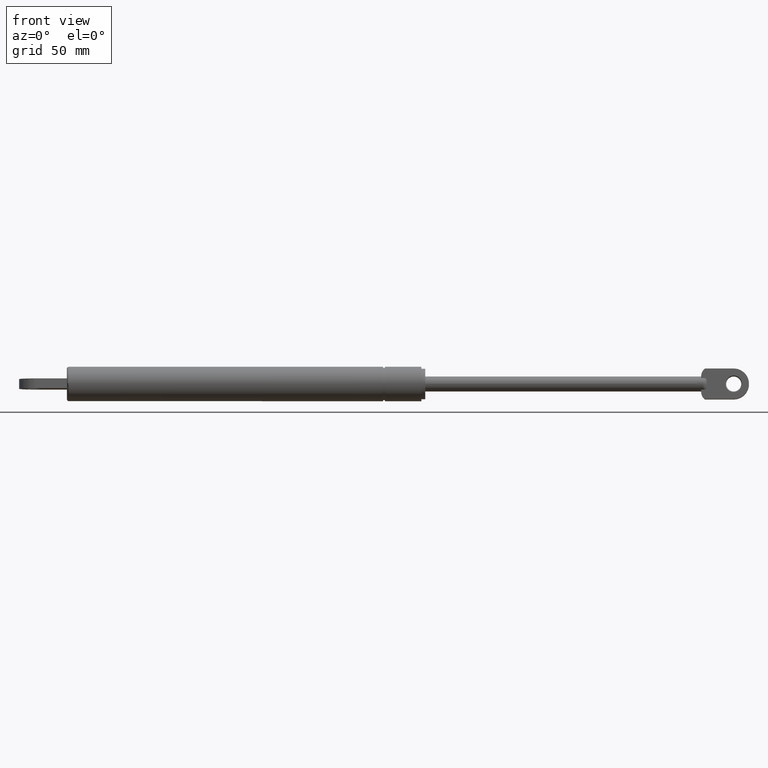
[diagram: clean part render]
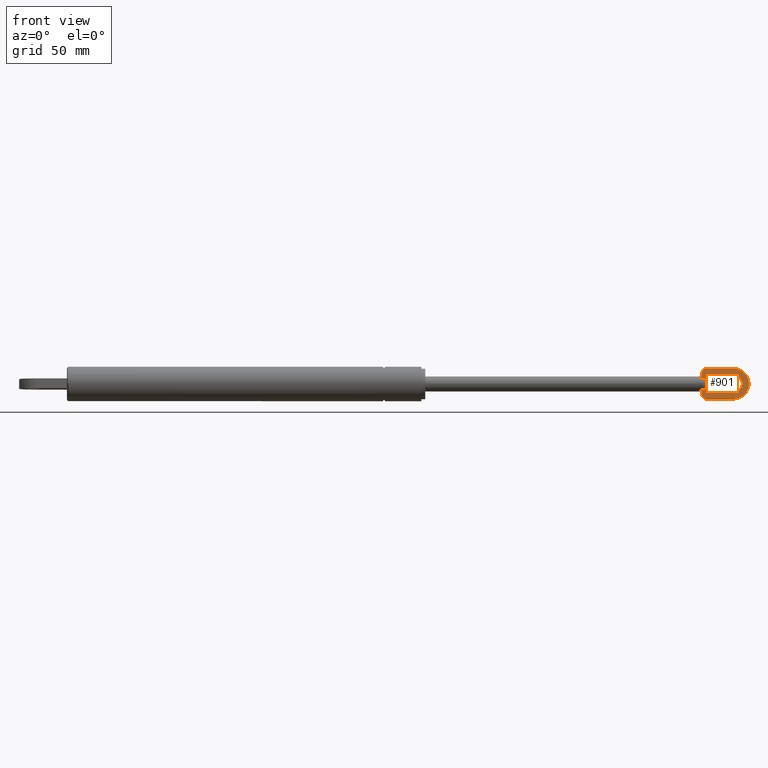
[diagram: same view with one face highlighted and labeled with its STEP entity id]
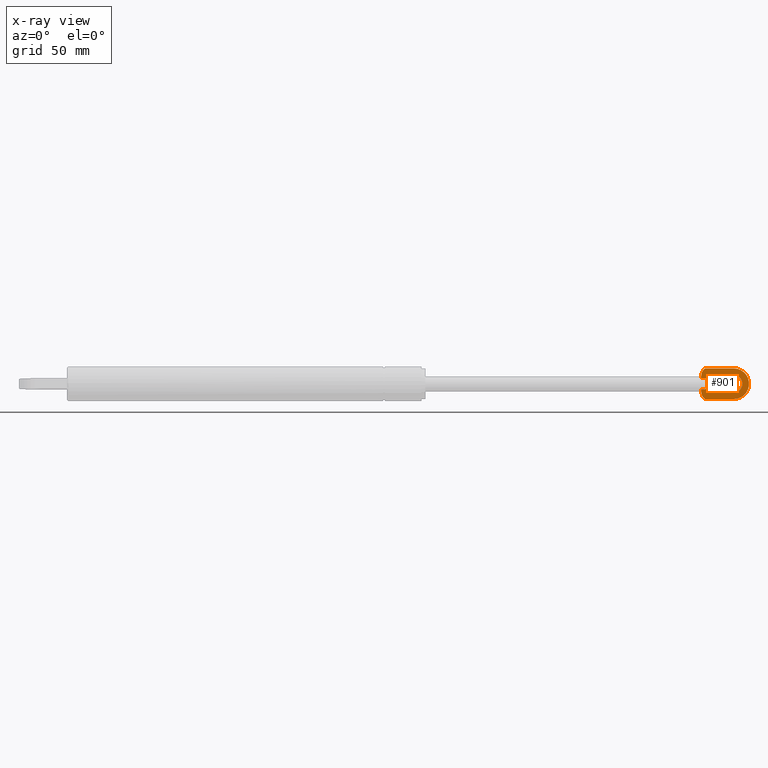
[diagram: x-ray of the same camera — body ghosted, the highlighted face saturated]
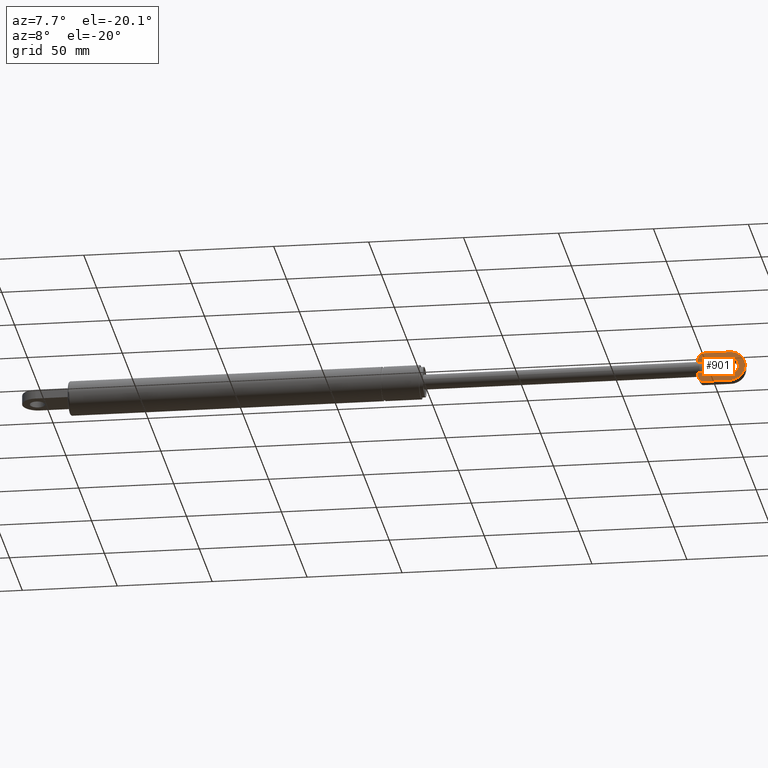
[diagram: same view with one face highlighted and labeled with its STEP entity id]
A machine part, front view. The second image highlights one B-rep face of the part: STEP entity #901.
The next image is the same camera in x-ray: the body ghosted, the highlighted face saturated — about 0% of this face is hidden behind the body in this view.
A second angle (auxiliary view) of the same face is appended — the face is thin or edge-on in the first view.
In plain terms, the highlighted planar face has unit normal (0, -0.9986, 0.0527).
Its self-contained STEP definition (entity closure, byte-faithful):
#84=LINE('',#1462,#120);
#85=LINE('',#1466,#121);
#91=LINE('',#1520,#127);
#93=LINE('',#1524,#129);
#94=LINE('',#1527,#130);
#95=LINE('',#1538,#131);
#107=LINE('',#1637,#143);
#108=LINE('',#1657,#144);
#109=LINE('',#1660,#145);
#120=VECTOR('',#1171,0.00130278208835932);
#121=VECTOR('',#1174,0.00130278208835932);
#127=VECTOR('',#1212,0.905371308492486);
#129=VECTOR('',#1216,0.905371308492487);
#130=VECTOR('',#1219,1.46496107074545);
#131=VECTOR('',#1220,1.46496107191372);
#143=VECTOR('',#1264,3.66606055596467);
#144=VECTOR('',#1265,14.634929514543);
#145=VECTOR('',#1268,14.634929514543);
#170=PLANE('',#1015);
#205=FACE_BOUND('',#363,.T.);
#226=B_SPLINE_CURVE_WITH_KNOTS('',3,(#1618,#1619,#1620,#1621,#1622,#1623,
#1624,#1625,#1626,#1627,#1628,#1629,#1630,#1631,#1632,#1633,#1634,#1635),
 .UNSPECIFIED.,.F.,.F.,(4,2,2,2,2,2,2,2,4),(0.,0.0690912354984613,0.131390143104628,
0.178106795887077,0.203221808805649,0.215204726390715,0.219497162319352,
0.221089283033011,0.221248680863122),.UNSPECIFIED.);
#227=B_SPLINE_CURVE_WITH_KNOTS('',3,(#1638,#1639,#1640,#1641,#1642,#1643,
#1644,#1645,#1646,#1647,#1648,#1649,#1650,#1651,#1652,#1653,#1654,#1655),
 .UNSPECIFIED.,.F.,.F.,(4,2,2,2,2,2,2,2,4),(-1.81460472844698E-5,0.,0.000322360023974993,
0.00121367107376994,0.00369803312218985,0.00890722924048458,0.0185988161350794,
0.0315182124548747,0.0458473792328224),.UNSPECIFIED.);
#274=FACE_OUTER_BOUND('',#362,.T.);
#362=EDGE_LOOP('',(#794,#795,#796,#797,#798,#799,#800,#801,#802,#803,#804,
#805,#806,#807,#808,#809));
#363=EDGE_LOOP('',(#810));
#420=CIRCLE('',#995,5.2025);
#423=CIRCLE('',#1003,1.);
#429=CIRCLE('',#1011,1.);
#430=CIRCLE('',#1013,5.2025);
#431=CIRCLE('',#1016,8.);
#432=CIRCLE('',#1017,4.5);
#475=VERTEX_POINT('',#1460);
#476=VERTEX_POINT('',#1461);
#477=VERTEX_POINT('',#1463);
#478=VERTEX_POINT('',#1465);
#491=VERTEX_POINT('',#1510);
#492=VERTEX_POINT('',#1512);
#495=VERTEX_POINT('',#1522);
#496=VERTEX_POINT('',#1526);
#497=VERTEX_POINT('',#1528);
#499=VERTEX_POINT('',#1543);
#511=VERTEX_POINT('',#1607);
#512=VERTEX_POINT('',#1609);
#513=VERTEX_POINT('',#1617);
#514=VERTEX_POINT('',#1636);
#515=VERTEX_POINT('',#1656);
#516=VERTEX_POINT('',#1658);
#517=VERTEX_POINT('',#1661);
#566=EDGE_CURVE('',#475,#476,#84,.T.);
#568=EDGE_CURVE('',#478,#477,#85,.T.);
#585=EDGE_CURVE('',#492,#491,#420,.T.);
#589=EDGE_CURVE('',#491,#475,#91,.T.);
#591=EDGE_CURVE('',#477,#495,#93,.T.);
#592=EDGE_CURVE('',#496,#478,#94,.T.);
#594=EDGE_CURVE('',#476,#497,#95,.T.);
#596=EDGE_CURVE('',#492,#499,#423,.T.);
#613=EDGE_CURVE('',#511,#512,#429,.T.);
#616=EDGE_CURVE('',#495,#512,#430,.T.);
#617=EDGE_CURVE('',#513,#497,#226,.F.);
#618=EDGE_CURVE('',#513,#514,#107,.T.);
#619=EDGE_CURVE('',#514,#496,#227,.T.);
#620=EDGE_CURVE('',#511,#515,#108,.T.);
#621=EDGE_CURVE('',#515,#516,#431,.T.);
#622=EDGE_CURVE('',#516,#499,#109,.T.);
#623=EDGE_CURVE('',#517,#517,#432,.T.);
#794=ORIENTED_EDGE('',*,*,#596,.F.);
#795=ORIENTED_EDGE('',*,*,#585,.T.);
#796=ORIENTED_EDGE('',*,*,#589,.T.);
#797=ORIENTED_EDGE('',*,*,#566,.T.);
#798=ORIENTED_EDGE('',*,*,#594,.T.);
#799=ORIENTED_EDGE('',*,*,#617,.F.);
#800=ORIENTED_EDGE('',*,*,#618,.T.);
#801=ORIENTED_EDGE('',*,*,#619,.T.);
#802=ORIENTED_EDGE('',*,*,#592,.T.);
#803=ORIENTED_EDGE('',*,*,#568,.T.);
#804=ORIENTED_EDGE('',*,*,#591,.T.);
#805=ORIENTED_EDGE('',*,*,#616,.T.);
#806=ORIENTED_EDGE('',*,*,#613,.F.);
#807=ORIENTED_EDGE('',*,*,#620,.T.);
#808=ORIENTED_EDGE('',*,*,#621,.T.);
#809=ORIENTED_EDGE('',*,*,#622,.T.);
#810=ORIENTED_EDGE('',*,*,#623,.F.);
#901=ADVANCED_FACE('',(#274,#205),#170,.T.);
#995=AXIS2_PLACEMENT_3D('',#1513,#1204,#1205);
#1003=AXIS2_PLACEMENT_3D('',#1544,#1227,#1228);
#1011=AXIS2_PLACEMENT_3D('',#1610,#1252,#1253);
#1013=AXIS2_PLACEMENT_3D('',#1614,#1258,#1259);
#1015=AXIS2_PLACEMENT_3D('',#1616,#1262,#1263);
#1016=AXIS2_PLACEMENT_3D('',#1659,#1266,#1267);
#1017=AXIS2_PLACEMENT_3D('',#1662,#1269,#1270);
#1171=DIRECTION('',(1.83697019872103E-16,-1.,0.));
#1174=DIRECTION('',(1.83697019872103E-16,-1.,0.));
#1204=DIRECTION('center_axis',(0.,0.,1.));
#1205=DIRECTION('ref_axis',(1.,-1.06700915389251E-16,0.));
#1212=DIRECTION('',(1.83697019872103E-16,-1.,0.));
#1216=DIRECTION('',(1.83697019872103E-16,-1.,0.));
#1219=DIRECTION('',(-1.,0.,0.));
#1220=DIRECTION('',(1.,0.,0.));
#1227=DIRECTION('center_axis',(0.,0.,-1.));
#1228=DIRECTION('ref_axis',(-0.362176644022377,0.93210947775714,0.));
#1252=DIRECTION('center_axis',(0.,0.,-1.));
#1253=DIRECTION('ref_axis',(-0.362176644022378,-0.93210947775714,0.));
#1258=DIRECTION('center_axis',(0.,0.,1.));
#1259=DIRECTION('ref_axis',(1.,1.06700915389251E-16,0.));
#1262=DIRECTION('center_axis',(0.,0.,1.));
#1263=DIRECTION('ref_axis',(1.,0.,0.));
#1264=DIRECTION('',(-7.57226012684414E-34,-1.,0.));
#1265=DIRECTION('',(1.,6.53072367426563E-17,0.));
#1266=DIRECTION('center_axis',(0.,0.,1.));
#1267=DIRECTION('ref_axis',(0.,1.,0.));
#1268=DIRECTION('',(-1.,-3.26536183713281E-16,0.));
#1269=DIRECTION('center_axis',(0.,0.,1.));
#1270=DIRECTION('ref_axis',(-1.,0.,0.));
#1460=CARTESIAN_POINT('',(-1.94289029309402E-15,2.99462869150751,2.5));
#1461=CARTESIAN_POINT('',(0.,2.99332590941915,2.5));
#1462=CARTESIAN_POINT('',(3.11895409416677E-16,-8.,2.5));
#1463=CARTESIAN_POINT('',(0.,-2.99462869150751,2.5));
#1465=CARTESIAN_POINT('',(0.,-2.99332590941915,2.5));
#1466=CARTESIAN_POINT('',(3.11895409416677E-16,-8.,2.5));
#1510=CARTESIAN_POINT('',(0.,3.9,2.5));
#1512=CARTESIAN_POINT('',(1.68989392042589,7.73765615704938,2.5));
#1513=CARTESIAN_POINT('Origin',(5.2025,3.9,2.5));
#1520=CARTESIAN_POINT('',(3.11895409416677E-16,-8.,2.5));
#1522=CARTESIAN_POINT('',(0.,-3.9,2.5));
#1524=CARTESIAN_POINT('',(3.11895409416677E-16,-8.,2.5));
#1526=CARTESIAN_POINT('',(1.46496107074545,-2.9933259080364,2.50000000165561));
#1527=CARTESIAN_POINT('',(0.,-2.99332590941915,2.5));
#1528=CARTESIAN_POINT('',(1.46496107191372,2.99332590923542,2.50000000021999));
#1538=CARTESIAN_POINT('',(0.,2.99332590941915,2.5));
#1543=CARTESIAN_POINT('',(2.36507048545695,8.,2.5));
#1544=CARTESIAN_POINT('Origin',(2.36507048545695,7.,2.5));
#1607=CARTESIAN_POINT('',(2.36507048545695,-8.,2.5));
#1609=CARTESIAN_POINT('',(1.68989392042589,-7.73765615704938,2.5));
#1610=CARTESIAN_POINT('Origin',(2.36507048545695,-7.,2.5));
#1614=CARTESIAN_POINT('Origin',(5.2025,-3.9,2.5));
#1616=CARTESIAN_POINT('Origin',(10.2461445222946,9.67520858862507E-16,2.5));
#1617=CARTESIAN_POINT('',(3.,1.83303027798234,2.5));
#1618=CARTESIAN_POINT('Ctrl Pts',(1.46496107209274,2.99332590941915,2.5));
#1619=CARTESIAN_POINT('Ctrl Pts',(1.69526519042094,2.99332590941915,2.5));
#1620=CARTESIAN_POINT('Ctrl Pts',(1.92360327082153,2.95014162766991,2.5));
#1621=CARTESIAN_POINT('Ctrl Pts',(2.32722900781195,2.78307052810558,2.5));
#1622=CARTESIAN_POINT('Ctrl Pts',(2.50263596574184,2.66859243481683,2.49999999995591));
#1623=CARTESIAN_POINT('Ctrl Pts',(2.75716265798724,2.41266698824928,2.49999999995591));
#1624=CARTESIAN_POINT('Ctrl Pts',(2.84045933785586,2.2940990463281,2.5));
#1625=CARTESIAN_POINT('Ctrl Pts',(2.93116430814382,2.1115470510142,2.5));
#1626=CARTESIAN_POINT('Ctrl Pts',(2.95754686969279,2.04418107449878,2.5));
#1627=CARTESIAN_POINT('Ctrl Pts',(2.98463182630227,1.94332440588027,2.5));
#1628=CARTESIAN_POINT('Ctrl Pts',(2.99182719269511,1.90942924325321,2.5));
#1629=CARTESIAN_POINT('Ctrl Pts',(2.9977758996292,1.86485977684752,2.5));
#1630=CARTESIAN_POINT('Ctrl Pts',(2.99908070461484,1.85245450054723,2.5));
#1631=CARTESIAN_POINT('Ctrl Pts',(2.99993218811483,1.83700440561367,2.5));
#1632=CARTESIAN_POINT('Ctrl Pts',(2.99998893180995,1.83434304341442,2.5));
#1633=CARTESIAN_POINT('Ctrl Pts',(2.999999674268,1.83313978589096,2.5));
#1634=CARTESIAN_POINT('Ctrl Pts',(3.,1.83292077055948,2.5));
#1635=CARTESIAN_POINT('Ctrl Pts',(3.,1.83303027798234,2.5));
#1636=CARTESIAN_POINT('',(3.,-1.83303027798234,2.5));
#1637=CARTESIAN_POINT('',(3.,2.11159056692176E-16,2.5));
#1638=CARTESIAN_POINT('Ctrl Pts',(3.,-1.83303027798234,2.5));
#1639=CARTESIAN_POINT('Ctrl Pts',(3.,-1.83309076480662,2.5));
#1640=CARTESIAN_POINT('Ctrl Pts',(2.99999923663402,-1.83318880514559,2.5));
#1641=CARTESIAN_POINT('Ctrl Pts',(2.9999891037754,-1.83432378015182,2.5));
#1642=CARTESIAN_POINT('Ctrl Pts',(2.99993403541446,-1.83692096832707,2.5));
#1643=CARTESIAN_POINT('Ctrl Pts',(2.99909887082562,-1.8522586268787,2.5));
#1644=CARTESIAN_POINT('Ctrl Pts',(2.99779615233477,-1.86468344852937,2.5));
#1645=CARTESIAN_POINT('Ctrl Pts',(2.99186007060376,-1.90925080748451,2.5));
#1646=CARTESIAN_POINT('Ctrl Pts',(2.98467437435996,-1.94313713042071,2.5));
#1647=CARTESIAN_POINT('Ctrl Pts',(2.95761433088869,-2.04399006634934,2.5));
#1648=CARTESIAN_POINT('Ctrl Pts',(2.93124132639609,-2.11136645272352,2.5));
#1649=CARTESIAN_POINT('Ctrl Pts',(2.84054804456584,-2.29396803124798,2.5));
#1650=CARTESIAN_POINT('Ctrl Pts',(2.75723715614348,-2.41258387811254,2.49999999995943));
#1651=CARTESIAN_POINT('Ctrl Pts',(2.5026801329913,-2.66855895593432,2.49999999995943));
#1652=CARTESIAN_POINT('Ctrl Pts',(2.32727745008893,-2.7830429629832,2.5));
#1653=CARTESIAN_POINT('Ctrl Pts',(1.92364048451011,-2.95013455533659,2.5));
#1654=CARTESIAN_POINT('Ctrl Pts',(1.69528404821761,-2.99332590941916,2.5));
#1655=CARTESIAN_POINT('Ctrl Pts',(1.46496107209274,-2.99332590941916,2.5));
#1656=CARTESIAN_POINT('',(17.,-8.,2.5));
#1657=CARTESIAN_POINT('',(17.,-8.,2.5));
#1658=CARTESIAN_POINT('',(17.,8.00000000000001,2.5));
#1659=CARTESIAN_POINT('Origin',(17.,3.88578058618805E-15,2.5));
#1660=CARTESIAN_POINT('',(-2.62725690853697E-15,8.,2.5));
#1661=CARTESIAN_POINT('',(21.5,4.43687164580436E-15,2.5));
#1662=CARTESIAN_POINT('Origin',(17.,3.88578058618805E-15,2.5));